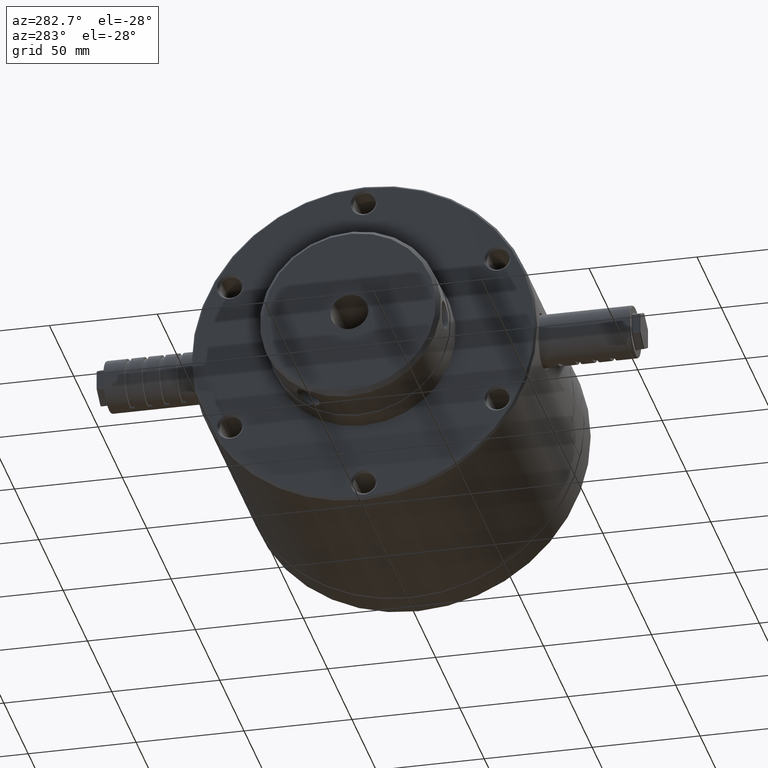
[diagram: clean part render]
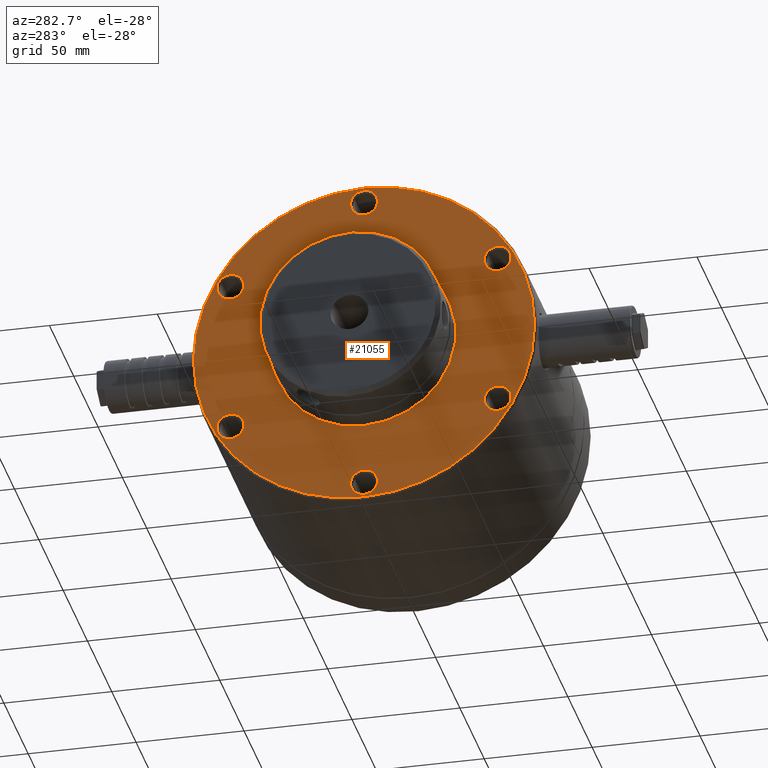
[diagram: same view with one face highlighted and labeled with its STEP entity id]
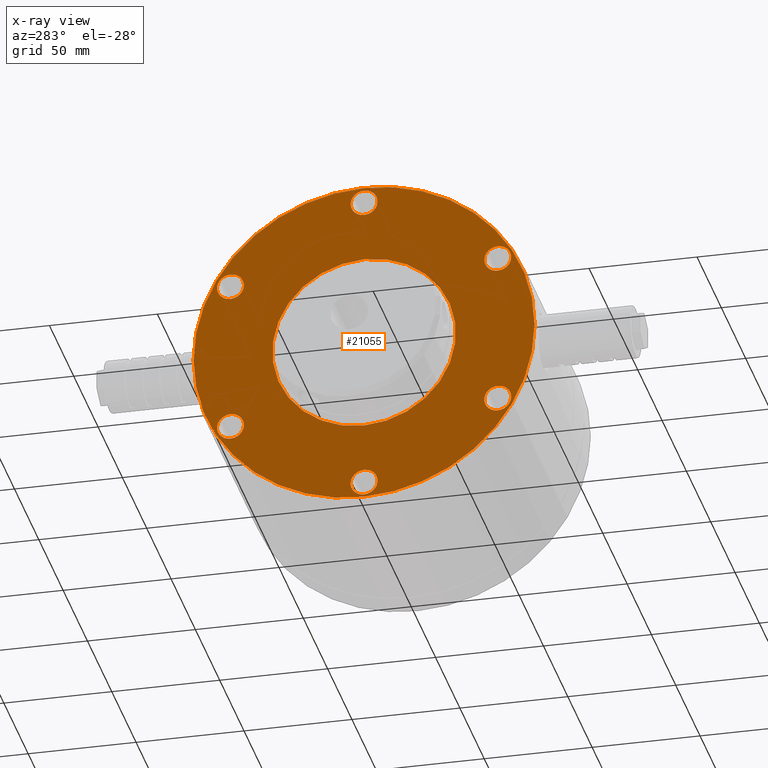
[diagram: x-ray of the same camera — body ghosted, the highlighted face saturated]
A machine part, auxiliary view. The second image highlights one B-rep face of the part: STEP entity #21055.
The next image is the same camera in x-ray: the body ghosted, the highlighted face saturated — about 0% of this face is hidden behind the body in this view.
In plain terms, the highlighted planar face has unit normal (1, 0, 0).
Its self-contained STEP definition (entity closure, byte-faithful):
#198 = ORIENTED_EDGE ( 'NONE', *, *, #18420, .T. ) ;
#288 = EDGE_CURVE ( 'NONE', #4420, #16238, #13126, .T. ) ;
#483 = FACE_BOUND ( 'NONE', #25435, .T. ) ;
#1019 = AXIS2_PLACEMENT_3D ( 'NONE', #24324, #22016, #12678 ) ;
#1390 = AXIS2_PLACEMENT_3D ( 'NONE', #13215, #6108, #3560 ) ;
#1756 = EDGE_LOOP ( 'NONE', ( #5507, #12427 ) ) ;
#1798 = EDGE_LOOP ( 'NONE', ( #14999, #21286 ) ) ;
#1955 = EDGE_CURVE ( 'NONE', #30992, #16031, #8165, .T. ) ;
#1979 = VERTEX_POINT ( 'NONE', #19709 ) ;
#2534 = CARTESIAN_POINT ( 'NONE',  ( -97.00000000000000000, 0.0000000000000000000, 0.0000000000000000000 ) ) ;
#2673 = CIRCLE ( 'NONE', #19933, 6.249999999999998200 ) ;
#2773 = CARTESIAN_POINT ( 'NONE',  ( -97.00000000000000000, 61.92081637058730300, -41.99999999999999300 ) ) ;
#2946 = CARTESIAN_POINT ( 'NONE',  ( -97.00000000000000000, 0.0000000000000000000, -79.00000000000000000 ) ) ;
#2971 = AXIS2_PLACEMENT_3D ( 'NONE', #30941, #9357, #23746 ) ;
#2980 = DIRECTION ( 'NONE',  ( 1.000000000000000000, 0.0000000000000000000, 0.0000000000000000000 ) ) ;
#3087 = FACE_BOUND ( 'NONE', #1798, .T. ) ;
#3543 = CARTESIAN_POINT ( 'NONE',  ( -97.00000000000000000, -61.92081637058760200, 35.75000000000000000 ) ) ;
#3560 = DIRECTION ( 'NONE',  ( 0.0000000000000000000, 0.0000000000000000000, -1.000000000000000000 ) ) ;
#3736 = DIRECTION ( 'NONE',  ( 0.0000000000000000000, 0.0000000000000000000, -1.000000000000000000 ) ) ;
#4180 = DIRECTION ( 'NONE',  ( 1.000000000000000000, 0.0000000000000000000, 0.0000000000000000000 ) ) ;
#4297 = VERTEX_POINT ( 'NONE', #9141 ) ;
#4420 = VERTEX_POINT ( 'NONE', #11898 ) ;
#4473 = EDGE_CURVE ( 'NONE', #1979, #11444, #17527, .T. ) ;
#4647 = DIRECTION ( 'NONE',  ( 0.0000000000000000000, 0.0000000000000000000, -1.000000000000000000 ) ) ;
#4701 = AXIS2_PLACEMENT_3D ( 'NONE', #13516, #13413, #11798 ) ;
#4952 = CARTESIAN_POINT ( 'NONE',  ( -97.00000000000000000, 7.736866702856559600E-013, -65.24999999999998600 ) ) ;
#5185 = EDGE_CURVE ( 'NONE', #27498, #16616, #19460, .T. ) ;
#5222 = CARTESIAN_POINT ( 'NONE',  ( -97.00000000000000000, -61.92081637058709700, -29.50000000000049700 ) ) ;
#5507 = ORIENTED_EDGE ( 'NONE', *, *, #20170, .T. ) ;
#5783 = DIRECTION ( 'NONE',  ( 1.000000000000000000, 0.0000000000000000000, 0.0000000000000000000 ) ) ;
#5910 = CIRCLE ( 'NONE', #23340, 6.249999999999998200 ) ;
#6108 = DIRECTION ( 'NONE',  ( 1.000000000000000000, 0.0000000000000000000, 0.0000000000000000000 ) ) ;
#6400 = EDGE_CURVE ( 'NONE', #16665, #10511, #7634, .T. ) ;
#6528 = EDGE_CURVE ( 'NONE', #23872, #12236, #2673, .T. ) ;
#6630 = CARTESIAN_POINT ( 'NONE',  ( -97.00000000000000000, -61.92081637058709700, -35.75000000000049700 ) ) ;
#6662 = VERTEX_POINT ( 'NONE', #30508 ) ;
#6755 = AXIS2_PLACEMENT_3D ( 'NONE', #7001, #7201, #4647 ) ;
#7001 = CARTESIAN_POINT ( 'NONE',  ( -97.00000000000000000, 0.0000000000000000000, 0.0000000000000000000 ) ) ;
#7201 = DIRECTION ( 'NONE',  ( 1.000000000000000000, 0.0000000000000000000, 0.0000000000000000000 ) ) ;
#7553 = EDGE_CURVE ( 'NONE', #16616, #27498, #29117, .T. ) ;
#7634 = CIRCLE ( 'NONE', #4701, 6.249999999999998200 ) ;
#7758 = EDGE_CURVE ( 'NONE', #12294, #6662, #30111, .T. ) ;
#7855 = DIRECTION ( 'NONE',  ( 1.000000000000000000, 0.0000000000000000000, 0.0000000000000000000 ) ) ;
#8006 = FACE_OUTER_BOUND ( 'NONE', #1756, .T. ) ;
#8165 = CIRCLE ( 'NONE', #1019, 79.00000000000000000 ) ;
#8208 = DIRECTION ( 'NONE',  ( 0.0000000000000000000, 0.0000000000000000000, -1.000000000000000000 ) ) ;
#8503 = CARTESIAN_POINT ( 'NONE',  ( -97.00000000000000000, -2.706168622523820100E-013, 71.50000000000000000 ) ) ;
#9141 = CARTESIAN_POINT ( 'NONE',  ( -97.00000000000000000, -61.92081637058760200, 29.50000000000000000 ) ) ;
#9357 = DIRECTION ( 'NONE',  ( 1.000000000000000000, 0.0000000000000000000, 0.0000000000000000000 ) ) ;
#9394 = CARTESIAN_POINT ( 'NONE',  ( -97.00000000000000000, 61.92081637058730300, -29.50000000000000000 ) ) ;
#9735 = VERTEX_POINT ( 'NONE', #22401 ) ;
#10203 = AXIS2_PLACEMENT_3D ( 'NONE', #29393, #22229, #12794 ) ;
#10342 = AXIS2_PLACEMENT_3D ( 'NONE', #2534, #26774, #19312 ) ;
#10433 = EDGE_LOOP ( 'NONE', ( #198, #26892 ) ) ;
#10465 = CIRCLE ( 'NONE', #14020, 6.249999999999998200 ) ;
#10511 = VERTEX_POINT ( 'NONE', #5222 ) ;
#10742 = CARTESIAN_POINT ( 'NONE',  ( -97.00000000000000000, 7.736866702856559600E-013, -71.50000000000000000 ) ) ;
#11064 = DIRECTION ( 'NONE',  ( 0.0000000000000000000, 0.0000000000000000000, -1.000000000000000000 ) ) ;
#11251 = ORIENTED_EDGE ( 'NONE', *, *, #18315, .T. ) ;
#11444 = VERTEX_POINT ( 'NONE', #31140 ) ;
#11600 = CIRCLE ( 'NONE', #24746, 6.250000000000005300 ) ;
#11798 = DIRECTION ( 'NONE',  ( 0.0000000000000000000, 0.0000000000000000000, -1.000000000000000000 ) ) ;
#11898 = CARTESIAN_POINT ( 'NONE',  ( -97.00000000000000000, 7.744520745351230700E-013, -77.75000000000000000 ) ) ;
#12236 = VERTEX_POINT ( 'NONE', #2773 ) ;
#12294 = VERTEX_POINT ( 'NONE', #22459 ) ;
#12427 = ORIENTED_EDGE ( 'NONE', *, *, #1955, .T. ) ;
#12503 = CARTESIAN_POINT ( 'NONE',  ( -97.00000000000000000, 9.735942053221458500E-015, 79.00000000000000000 ) ) ;
#12678 = DIRECTION ( 'NONE',  ( 0.0000000000000000000, 0.0000000000000000000, -1.000000000000000000 ) ) ;
#12794 = DIRECTION ( 'NONE',  ( 0.0000000000000000000, 0.0000000000000000000, -1.000000000000000000 ) ) ;
#12882 = DIRECTION ( 'NONE',  ( 1.000000000000000000, 0.0000000000000000000, 0.0000000000000000000 ) ) ;
#13126 = CIRCLE ( 'NONE', #1390, 6.250000000000005300 ) ;
#13215 = CARTESIAN_POINT ( 'NONE',  ( -97.00000000000000000, 7.736866702856559600E-013, -71.50000000000000000 ) ) ;
#13304 = DIRECTION ( 'NONE',  ( 1.000000000000000000, 0.0000000000000000000, 0.0000000000000000000 ) ) ;
#13413 = DIRECTION ( 'NONE',  ( 1.000000000000000000, 0.0000000000000000000, 0.0000000000000000000 ) ) ;
#13516 = CARTESIAN_POINT ( 'NONE',  ( -97.00000000000000000, -61.92081637058709700, -35.75000000000049700 ) ) ;
#14020 = AXIS2_PLACEMENT_3D ( 'NONE', #3543, #5783, #8208 ) ;
#14049 = CARTESIAN_POINT ( 'NONE',  ( -97.00000000000000000, 61.92081637058730300, 35.75000000000000000 ) ) ;
#14209 = DIRECTION ( 'NONE',  ( 1.000000000000000000, 0.0000000000000000000, 0.0000000000000000000 ) ) ;
#14247 = AXIS2_PLACEMENT_3D ( 'NONE', #19996, #12882, #22406 ) ;
#14362 = DIRECTION ( 'NONE',  ( 1.000000000000000000, 0.0000000000000000000, 0.0000000000000000000 ) ) ;
#14473 = FACE_BOUND ( 'NONE', #26863, .T. ) ;
#14891 = ORIENTED_EDGE ( 'NONE', *, *, #22551, .T. ) ;
#14999 = ORIENTED_EDGE ( 'NONE', *, *, #5185, .T. ) ;
#15454 = AXIS2_PLACEMENT_3D ( 'NONE', #14049, #18842, #23785 ) ;
#15709 = CARTESIAN_POINT ( 'NONE',  ( -97.00000000000000000, -2.698514580029149100E-013, 65.24999999999998600 ) ) ;
#15812 = DIRECTION ( 'NONE',  ( 1.000000000000000000, 0.0000000000000000000, 0.0000000000000000000 ) ) ;
#16001 = FACE_BOUND ( 'NONE', #24434, .T. ) ;
#16031 = VERTEX_POINT ( 'NONE', #2946 ) ;
#16238 = VERTEX_POINT ( 'NONE', #4952 ) ;
#16563 = ORIENTED_EDGE ( 'NONE', *, *, #4473, .T. ) ;
#16616 = VERTEX_POINT ( 'NONE', #15709 ) ;
#16665 = VERTEX_POINT ( 'NONE', #21600 ) ;
#17110 = ORIENTED_EDGE ( 'NONE', *, *, #6528, .T. ) ;
#17305 = CARTESIAN_POINT ( 'NONE',  ( -97.00000000000000000, -2.706168622523820100E-013, 71.50000000000000000 ) ) ;
#17378 = DIRECTION ( 'NONE',  ( 0.0000000000000000000, 0.0000000000000000000, -1.000000000000000000 ) ) ;
#17446 = CIRCLE ( 'NONE', #6755, 42.50000000000000000 ) ;
#17527 = CIRCLE ( 'NONE', #28205, 6.249999999999890800 ) ;
#17895 = ORIENTED_EDGE ( 'NONE', *, *, #18318, .T. ) ;
#18315 = EDGE_CURVE ( 'NONE', #4297, #9735, #10465, .T. ) ;
#18318 = EDGE_CURVE ( 'NONE', #16238, #4420, #11600, .T. ) ;
#18420 = EDGE_CURVE ( 'NONE', #10511, #16665, #5910, .T. ) ;
#18680 = AXIS2_PLACEMENT_3D ( 'NONE', #17305, #2980, #22360 ) ;
#18842 = DIRECTION ( 'NONE',  ( 1.000000000000000000, 0.0000000000000000000, 0.0000000000000000000 ) ) ;
#19312 = DIRECTION ( 'NONE',  ( 0.0000000000000000000, 0.0000000000000000000, -1.000000000000000000 ) ) ;
#19460 = CIRCLE ( 'NONE', #18680, 6.250000000000005300 ) ;
#19582 = CIRCLE ( 'NONE', #2971, 6.249999999999998200 ) ;
#19612 = ORIENTED_EDGE ( 'NONE', *, *, #26528, .T. ) ;
#19709 = CARTESIAN_POINT ( 'NONE',  ( -97.00000000000000000, 61.92081637058730300, 41.99999999999990100 ) ) ;
#19933 = AXIS2_PLACEMENT_3D ( 'NONE', #19955, #7855, #22579 ) ;
#19955 = CARTESIAN_POINT ( 'NONE',  ( -97.00000000000000000, 61.92081637058730300, -35.75000000000000000 ) ) ;
#19996 = CARTESIAN_POINT ( 'NONE',  ( -97.00000000000000000, 0.0000000000000000000, 0.0000000000000000000 ) ) ;
#20170 = EDGE_CURVE ( 'NONE', #16031, #30992, #29278, .T. ) ;
#20924 = FACE_BOUND ( 'NONE', #30454, .T. ) ;
#20944 = EDGE_CURVE ( 'NONE', #11444, #1979, #23970, .T. ) ;
#21055 = ADVANCED_FACE ( 'NONE', ( #16001, #26580, #3087, #20924, #14473, #28839, #8006, #483 ), #26420, .F. ) ;
#21286 = ORIENTED_EDGE ( 'NONE', *, *, #7553, .T. ) ;
#21600 = CARTESIAN_POINT ( 'NONE',  ( -97.00000000000000000, -61.92081637058709700, -42.00000000000049700 ) ) ;
#21955 = AXIS2_PLACEMENT_3D ( 'NONE', #28947, #14362, #29055 ) ;
#22016 = DIRECTION ( 'NONE',  ( -1.000000000000000000, -0.0000000000000000000, -0.0000000000000000000 ) ) ;
#22229 = DIRECTION ( 'NONE',  ( 1.000000000000000000, 0.0000000000000000000, 0.0000000000000000000 ) ) ;
#22360 = DIRECTION ( 'NONE',  ( 0.0000000000000000000, 0.0000000000000000000, -1.000000000000000000 ) ) ;
#22401 = CARTESIAN_POINT ( 'NONE',  ( -97.00000000000000000, -61.92081637058760200, 41.99999999999999300 ) ) ;
#22406 = DIRECTION ( 'NONE',  ( 0.0000000000000000000, 0.0000000000000000000, -1.000000000000000000 ) ) ;
#22459 = CARTESIAN_POINT ( 'NONE',  ( -97.00000000000000000, 0.0000000000000000000, -42.50000000000000000 ) ) ;
#22551 = EDGE_CURVE ( 'NONE', #6662, #12294, #17446, .T. ) ;
#22579 = DIRECTION ( 'NONE',  ( 0.0000000000000000000, 0.0000000000000000000, -1.000000000000000000 ) ) ;
#23340 = AXIS2_PLACEMENT_3D ( 'NONE', #6630, #4180, #30845 ) ;
#23715 = EDGE_CURVE ( 'NONE', #12236, #23872, #24192, .T. ) ;
#23746 = DIRECTION ( 'NONE',  ( 0.0000000000000000000, 0.0000000000000000000, -1.000000000000000000 ) ) ;
#23774 = ORIENTED_EDGE ( 'NONE', *, *, #288, .T. ) ;
#23785 = DIRECTION ( 'NONE',  ( 0.0000000000000000000, 0.0000000000000000000, -1.000000000000000000 ) ) ;
#23872 = VERTEX_POINT ( 'NONE', #9394 ) ;
#23970 = CIRCLE ( 'NONE', #15454, 6.249999999999890800 ) ;
#24192 = CIRCLE ( 'NONE', #10203, 6.249999999999998200 ) ;
#24324 = CARTESIAN_POINT ( 'NONE',  ( -97.00000000000000000, 0.0000000000000000000, 0.0000000000000000000 ) ) ;
#24434 = EDGE_LOOP ( 'NONE', ( #19612, #11251 ) ) ;
#24746 = AXIS2_PLACEMENT_3D ( 'NONE', #10742, #13304, #11064 ) ;
#25435 = EDGE_LOOP ( 'NONE', ( #25572, #14891 ) ) ;
#25572 = ORIENTED_EDGE ( 'NONE', *, *, #7758, .T. ) ;
#26420 = PLANE ( 'NONE',  #21955 ) ;
#26528 = EDGE_CURVE ( 'NONE', #9735, #4297, #19582, .T. ) ;
#26580 = FACE_BOUND ( 'NONE', #10433, .T. ) ;
#26774 = DIRECTION ( 'NONE',  ( -1.000000000000000000, -0.0000000000000000000, -0.0000000000000000000 ) ) ;
#26863 = EDGE_LOOP ( 'NONE', ( #17110, #29009 ) ) ;
#26892 = ORIENTED_EDGE ( 'NONE', *, *, #6400, .T. ) ;
#27212 = AXIS2_PLACEMENT_3D ( 'NONE', #8503, #15812, #3736 ) ;
#27498 = VERTEX_POINT ( 'NONE', #31298 ) ;
#27793 = EDGE_LOOP ( 'NONE', ( #17895, #23774 ) ) ;
#28205 = AXIS2_PLACEMENT_3D ( 'NONE', #28685, #14209, #17378 ) ;
#28685 = CARTESIAN_POINT ( 'NONE',  ( -97.00000000000000000, 61.92081637058730300, 35.75000000000000000 ) ) ;
#28839 = FACE_BOUND ( 'NONE', #27793, .T. ) ;
#28947 = CARTESIAN_POINT ( 'NONE',  ( -97.00000000000000000, 0.0000000000000000000, 0.0000000000000000000 ) ) ;
#29009 = ORIENTED_EDGE ( 'NONE', *, *, #23715, .T. ) ;
#29055 = DIRECTION ( 'NONE',  ( 0.0000000000000000000, 0.0000000000000000000, -1.000000000000000000 ) ) ;
#29117 = CIRCLE ( 'NONE', #27212, 6.250000000000005300 ) ;
#29278 = CIRCLE ( 'NONE', #10342, 79.00000000000000000 ) ;
#29393 = CARTESIAN_POINT ( 'NONE',  ( -97.00000000000000000, 61.92081637058730300, -35.75000000000000000 ) ) ;
#30111 = CIRCLE ( 'NONE', #14247, 42.50000000000000000 ) ;
#30454 = EDGE_LOOP ( 'NONE', ( #16563, #30550 ) ) ;
#30508 = CARTESIAN_POINT ( 'NONE',  ( -97.00000000000000000, 5.204748896376250900E-015, 42.50000000000000000 ) ) ;
#30550 = ORIENTED_EDGE ( 'NONE', *, *, #20944, .T. ) ;
#30845 = DIRECTION ( 'NONE',  ( 0.0000000000000000000, 0.0000000000000000000, -1.000000000000000000 ) ) ;
#30941 = CARTESIAN_POINT ( 'NONE',  ( -97.00000000000000000, -61.92081637058760200, 35.75000000000000000 ) ) ;
#30992 = VERTEX_POINT ( 'NONE', #12503 ) ;
#31140 = CARTESIAN_POINT ( 'NONE',  ( -97.00000000000000000, 61.92081637058730300, 29.50000000000009600 ) ) ;
#31298 = CARTESIAN_POINT ( 'NONE',  ( -97.00000000000000000, -2.706168622523820100E-013, 77.75000000000000000 ) ) ;